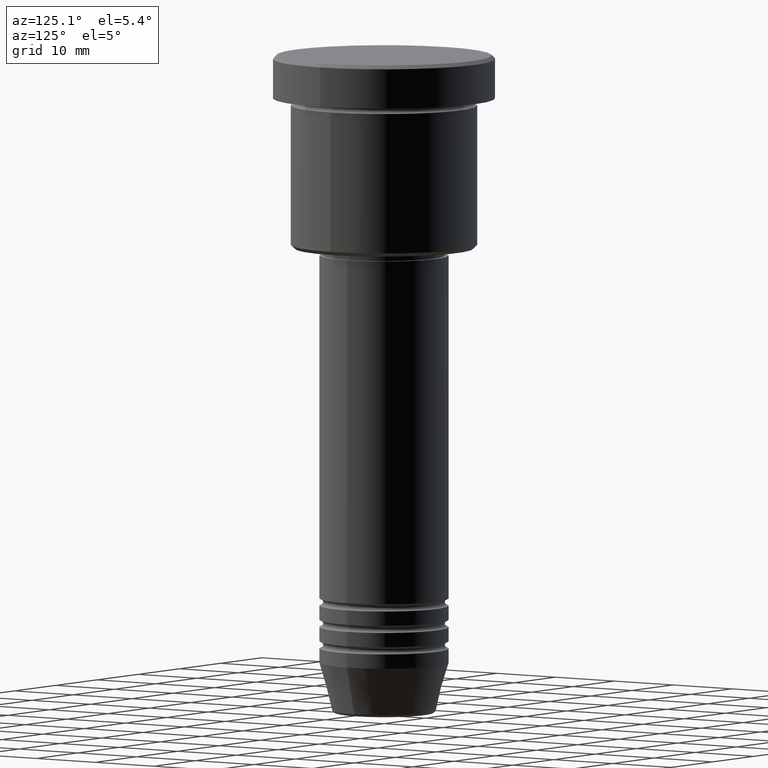
[diagram: clean part render]
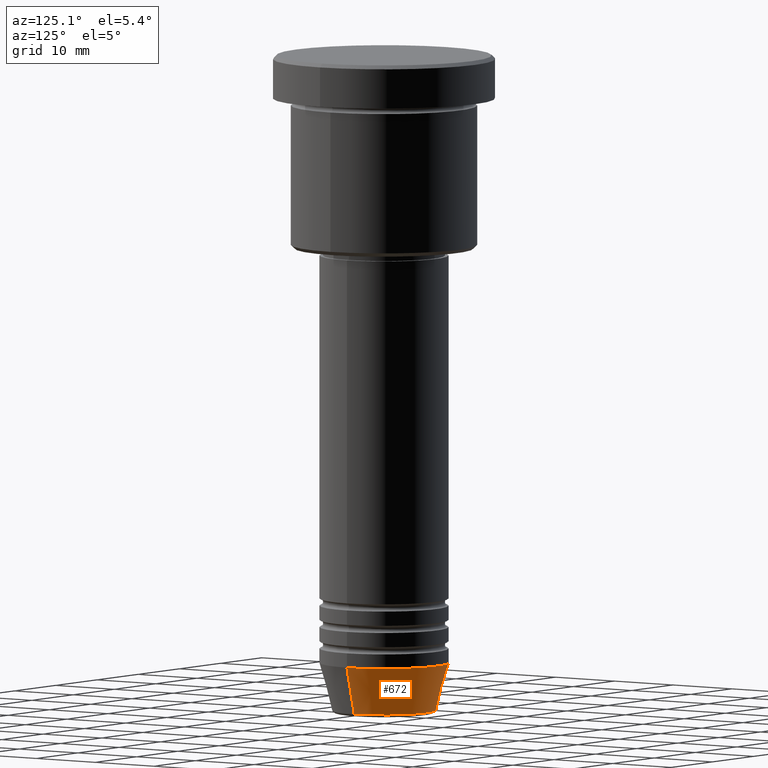
[diagram: same view with one face highlighted and labeled with its STEP entity id]
A machine part, auxiliary view. The second image highlights one B-rep face of the part: STEP entity #672.
In plain terms, the highlighted conical surface has half-angle 15 deg.
Its self-contained STEP definition (entity closure, byte-faithful):
#9 = ORIENTED_EDGE ( 'NONE', *, *, #346, .F. ) ;
#60 = CARTESIAN_POINT ( 'NONE',  ( 7.223655072137188604, 0.000000000000000000, -91.62940952255125637 ) ) ;
#72 = CARTESIAN_POINT ( 'NONE',  ( -7.223655072137189492, 9.934123627281765110E-16, -91.62940952255125637 ) ) ;
#150 = CARTESIAN_POINT ( 'NONE',  ( 0.000000000000000000, 0.000000000000000000, -84.99999999999998579 ) ) ;
#188 = VERTEX_POINT ( 'NONE', #72 ) ;
#220 = VERTEX_POINT ( 'NONE', #981 ) ;
#224 = AXIS2_PLACEMENT_3D ( 'NONE', #281, #262, #658 ) ;
#262 = DIRECTION ( 'NONE',  ( -0.000000000000000000, -0.000000000000000000, 1.000000000000000000 ) ) ;
#281 = CARTESIAN_POINT ( 'NONE',  ( 0.000000000000000000, 0.000000000000000000, -84.99999999999998579 ) ) ;
#329 = CIRCLE ( 'NONE', #488, 7.223655072137188604 ) ;
#336 = DIRECTION ( 'NONE',  ( 1.000000000000000000, 0.000000000000000000, 0.000000000000000000 ) ) ;
#345 = DIRECTION ( 'NONE',  ( -0.2588190451025213501, 3.169619151431772337E-17, 0.9659258262890680902 ) ) ;
#346 = EDGE_CURVE ( 'NONE', #590, #911, #765, .T. ) ;
#366 = EDGE_CURVE ( 'NONE', #911, #220, #870, .T. ) ;
#422 = DIRECTION ( 'NONE',  ( 1.000000000000000000, 0.000000000000000000, 0.000000000000000000 ) ) ;
#425 = VECTOR ( 'NONE', #908, 1000.000000000000000 ) ;
#488 = AXIS2_PLACEMENT_3D ( 'NONE', #501, #512, #422 ) ;
#501 = CARTESIAN_POINT ( 'NONE',  ( 0.000000000000000000, 0.000000000000000000, -91.62940952255125637 ) ) ;
#512 = DIRECTION ( 'NONE',  ( -0.000000000000000000, -0.000000000000000000, 1.000000000000000000 ) ) ;
#515 = DIRECTION ( 'NONE',  ( -0.000000000000000000, -0.000000000000000000, 1.000000000000000000 ) ) ;
#538 = LINE ( 'NONE', #814, #1029 ) ;
#541 = EDGE_CURVE ( 'NONE', #590, #188, #329, .T. ) ;
#590 = VERTEX_POINT ( 'NONE', #60 ) ;
#658 = DIRECTION ( 'NONE',  ( 1.000000000000000000, 0.000000000000000000, 0.000000000000000000 ) ) ;
#665 = CONICAL_SURFACE ( 'NONE', #773, 9.000000000000000000, 0.2617993877991500740 ) ;
#672 = ADVANCED_FACE ( 'NONE', ( #799 ), #665, .T. ) ;
#765 = LINE ( 'NONE', #1014, #425 ) ;
#773 = AXIS2_PLACEMENT_3D ( 'NONE', #150, #515, #336 ) ;
#785 = ORIENTED_EDGE ( 'NONE', *, *, #834, .T. ) ;
#799 = FACE_OUTER_BOUND ( 'NONE', #840, .T. ) ;
#814 = CARTESIAN_POINT ( 'NONE',  ( -9.000000000000000000, 1.102182119232617714E-15, -84.99999999999998579 ) ) ;
#834 = EDGE_CURVE ( 'NONE', #188, #220, #538, .T. ) ;
#840 = EDGE_LOOP ( 'NONE', ( #843, #785, #1111, #9 ) ) ;
#843 = ORIENTED_EDGE ( 'NONE', *, *, #541, .T. ) ;
#870 = CIRCLE ( 'NONE', #224, 9.000000000000000000 ) ;
#908 = DIRECTION ( 'NONE',  ( 0.2588190451025213501, 0.000000000000000000, 0.9659258262890680902 ) ) ;
#911 = VERTEX_POINT ( 'NONE', #1042 ) ;
#981 = CARTESIAN_POINT ( 'NONE',  ( -9.000000000000000000, 1.102182119232617714E-15, -84.99999999999998579 ) ) ;
#1014 = CARTESIAN_POINT ( 'NONE',  ( 9.000000000000000000, 0.000000000000000000, -84.99999999999998579 ) ) ;
#1029 = VECTOR ( 'NONE', #345, 1000.000000000000000 ) ;
#1042 = CARTESIAN_POINT ( 'NONE',  ( 9.000000000000000000, 0.000000000000000000, -84.99999999999998579 ) ) ;
#1111 = ORIENTED_EDGE ( 'NONE', *, *, #366, .F. ) ;